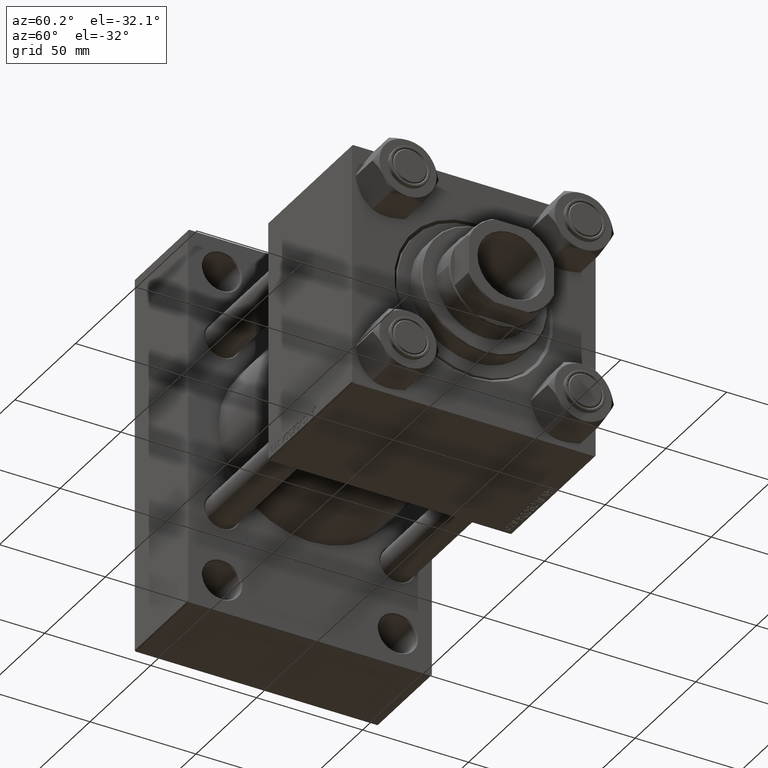
[diagram: clean part render]
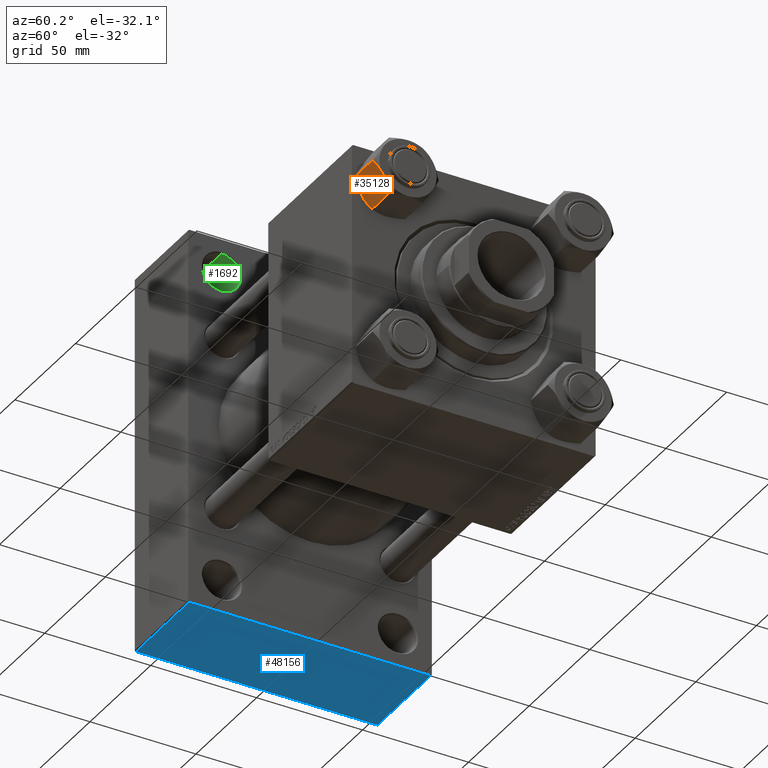
[diagram: same view with three faces highlighted in distinct colors, each labeled with its STEP entity id]
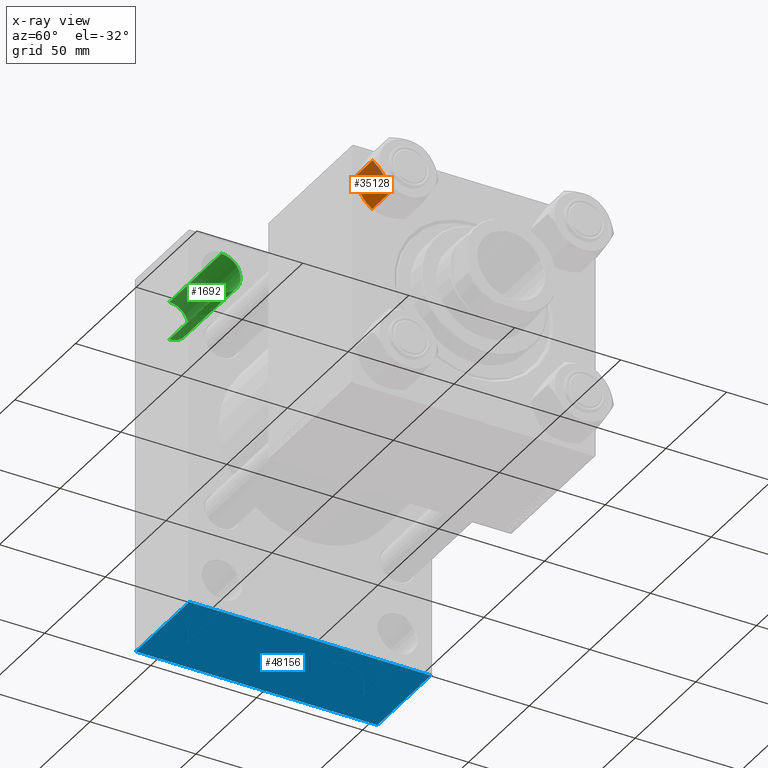
[diagram: x-ray of the same camera — body ghosted, the three highlighted faces saturated]
A machine part, auxiliary view with three faces highlighted in distinct colors.
The next image is the same camera in x-ray (body ghosted, the three faces saturated) — at least one of them is partly hidden behind the body in this view.
Their STEP definitions:

[orange] entity #35128 — the highlighted planar face has unit normal (-0, 0.866, 0.5).
#125 = ORIENTED_EDGE ( 'NONE', *, *, #48098, .F. ) ;
#405 = VERTEX_POINT ( 'NONE', #39028 ) ;
#482 = VERTEX_POINT ( 'NONE', #44088 ) ;
#844 = CARTESIAN_POINT ( 'NONE',  ( -7.809999999999999609, -13.52731680711293727, -18.00000000000000000 ) ) ;
#1028 = CARTESIAN_POINT ( 'NONE',  ( -15.61999999999999567, 8.023367828467702033E-15, -16.00000000000000000 ) ) ;
#1308 = CARTESIAN_POINT ( 'NONE',  ( -11.71500000000000163, -6.763658403556456200, 0.000000000000000000 ) ) ;
#2142 = EDGE_CURVE ( 'NONE', #405, #41718, #31010, .T. ) ;
#2338 = CARTESIAN_POINT ( 'NONE',  ( -15.52647173767731914, -0.1619957022864979002, -2.000000000000000000 ) ) ;
#3484 = CARTESIAN_POINT ( 'NONE',  ( -11.71499999999999986, -6.763658403556454424, -18.00000000000000000 ) ) ;
#3688 = CARTESIAN_POINT ( 'NONE',  ( -7.809999999999999609, -13.52731680711293727, -1.999999999999998224 ) ) ;
#5164 = CARTESIAN_POINT ( 'NONE',  ( -11.71499999999999986, -6.763658403556454424, -18.00000000000000000 ) ) ;
#5418 = CARTESIAN_POINT ( 'NONE',  ( -14.92394044919338292, -1.205610507090625561, -16.56553707812498999 ) ) ;
#5909 = VERTEX_POINT ( 'NONE', #49819 ) ;
#6124 = EDGE_CURVE ( 'NONE', #41718, #9784, #44169, .T. ) ;
#7024 = LINE ( 'NONE', #49103, #7823 ) ;
#7062 = CARTESIAN_POINT ( 'NONE',  ( -10.06459418565413166, -9.622245127110597096, -17.61639331488793303 ) ) ;
#7505 = DIRECTION ( 'NONE',  ( -0.4999999999999993894, 0.8660254037844389297, 0.000000000000000000 ) ) ;
#7823 = VECTOR ( 'NONE', #29997, 999.9999999999998863 ) ;
#8622 = VECTOR ( 'NONE', #21162, 999.9999999999998863 ) ;
#9210 = CARTESIAN_POINT ( 'NONE',  ( -9.124083218049248600, -11.25125790807802595, -0.9473872146228143887 ) ) ;
#9784 = VERTEX_POINT ( 'NONE', #1028 ) ;
#10528 = VERTEX_POINT ( 'NONE', #37729 ) ;
#10885 = VERTEX_POINT ( 'NONE', #26540 ) ;
#11365 = ORIENTED_EDGE ( 'NONE', *, *, #2142, .F. ) ;
#12102 = ORIENTED_EDGE ( 'NONE', *, *, #35688, .T. ) ;
#12271 = CARTESIAN_POINT ( 'NONE',  ( -7.903528262322684128, -13.36532110482641400, -2.000000000000000000 ) ) ;
#12314 = DIRECTION ( 'NONE',  ( 0.8660254037844390407, 0.4999999999999994449, 0.000000000000000000 ) ) ;
#12526 = CARTESIAN_POINT ( 'NONE',  ( -10.40215497533437805, -9.037572688741335014, -0.1971866459924560555 ) ) ;
#13867 = VERTEX_POINT ( 'NONE', #35348 ) ;
#14015 = LINE ( 'NONE', #48952, #8622 ) ;
#14706 = CARTESIAN_POINT ( 'NONE',  ( -11.38181071908714515, -7.340759166634855504, -17.99999999999998934 ) ) ;
#14844 = VECTOR ( 'NONE', #43658, 999.9999999999998863 ) ;
#14925 = ORIENTED_EDGE ( 'NONE', *, *, #17043, .F. ) ;
#15201 = CARTESIAN_POINT ( 'NONE',  ( -10.38662926516872709, -9.064464007571841009, -17.75691532989870325 ) ) ;
#16334 = VECTOR ( 'NONE', #30026, 1000.000000000000000 ) ;
#17043 = EDGE_CURVE ( 'NONE', #9784, #10528, #30516, .T. ) ;
#17126 = CARTESIAN_POINT ( 'NONE',  ( -11.71500000000000163, -6.763658403556456200, 0.000000000000000000 ) ) ;
#17150 = CARTESIAN_POINT ( 'NONE',  ( -15.52647173767731914, -0.1619957022864979002, -16.00000000000000000 ) ) ;
#17654 = VECTOR ( 'NONE', #18049, 1000.000000000000000 ) ;
#17799 = ORIENTED_EDGE ( 'NONE', *, *, #42438, .F. ) ;
#18049 = DIRECTION ( 'NONE',  ( -0.000000000000000000, -0.000000000000000000, 1.000000000000000000 ) ) ;
#18785 = CARTESIAN_POINT ( 'NONE',  ( -15.61999999999999567, 8.023367828467702033E-15, -18.00000000000000000 ) ) ;
#19290 = CARTESIAN_POINT ( 'NONE',  ( -8.502393313253762130, -12.32805640973646710, -16.58801072835992585 ) ) ;
#19481 = PLANE ( 'NONE',  #37184 ) ;
#20693 = CARTESIAN_POINT ( 'NONE',  ( -14.92760668674624469, -1.199260397376444409, -1.411989271640068155 ) ) ;
#20720 = CARTESIAN_POINT ( 'NONE',  ( -12.37702203890362362, -5.617002596445043849, -17.99999999999999645 ) ) ;
#20976 = CARTESIAN_POINT ( 'NONE',  ( -15.22736220980735489, -0.6800686015852174249, -16.29368822085854873 ) ) ;
#21162 = DIRECTION ( 'NONE',  ( -0.4999999999999994449, 0.8660254037844390407, 0.000000000000000000 ) ) ;
#22203 = EDGE_CURVE ( 'NONE', #10528, #39347, #23080, .T. ) ;
#22403 = B_SPLINE_CURVE_WITH_KNOTS ( 'NONE', 3,
 ( #1308, #36243, #12526, #32413, #9210, #35488, #47965, #12271 ),
 .UNSPECIFIED., .F., .F.,
 ( 4, 2, 2, 4 ),
 ( 0.007890825462474427426, 0.01181022244528554151, 0.01376992093669109421, 0.01572961942809664865 ),
 .UNSPECIFIED. ) ;
#23067 = FACE_OUTER_BOUND ( 'NONE', #39830, .T. ) ;
#23080 = LINE ( 'NONE', #3688, #40850 ) ;
#24819 = CARTESIAN_POINT ( 'NONE',  ( -15.52647173767731914, -0.1619957022864979002, -16.00000000000000000 ) ) ;
#26266 = ORIENTED_EDGE ( 'NONE', *, *, #34342, .F. ) ;
#26540 = CARTESIAN_POINT ( 'NONE',  ( -7.903528262322684128, -13.36532110482641400, -2.000000000000000000 ) ) ;
#26710 = CARTESIAN_POINT ( 'NONE',  ( -11.04378428799595291, -7.926238119585994113, -17.94910618364698252 ) ) ;
#28039 = VERTEX_POINT ( 'NONE', #46085 ) ;
#28120 = CARTESIAN_POINT ( 'NONE',  ( -7.809999999999999609, -13.52731680711293727, -16.00000000000000000 ) ) ;
#28677 = B_SPLINE_CURVE_WITH_KNOTS ( 'NONE', 3,
 ( #2338, #20693, #40336, #32174, #47723, #36259, #36511, #17126 ),
 .UNSPECIFIED., .F., .F.,
 ( 4, 2, 2, 4 ),
 ( 4.472842641998575579E-07, 0.003945636373369311792, 0.005918230917921869609, 0.007890825462474427426 ),
 .UNSPECIFIED. ) ;
#29997 = DIRECTION ( 'NONE',  ( 0.4999999999999994449, -0.8660254037844390407, 0.000000000000000000 ) ) ;
#30026 = DIRECTION ( 'NONE',  ( -0.000000000000000000, -0.000000000000000000, 1.000000000000000000 ) ) ;
#30050 = ORIENTED_EDGE ( 'NONE', *, *, #6124, .F. ) ;
#30451 = EDGE_CURVE ( 'NONE', #482, #405, #47802, .T. ) ;
#30516 = LINE ( 'NONE', #18785, #16334 ) ;
#30777 = CARTESIAN_POINT ( 'NONE',  ( -9.114548888011793082, -11.26777185211902399, -17.08577173959729834 ) ) ;
#31010 = B_SPLINE_CURVE_WITH_KNOTS ( 'NONE', 3,
 ( #5164, #20720, #39613, #36284, #48006, #5418, #20976, #17150 ),
 .UNSPECIFIED., .F., .F.,
 ( 4, 2, 2, 4 ),
 ( 0.007890825462474411814, 0.01181022244528552416, 0.01376992093669107860, 0.01572961942809663477 ),
 .UNSPECIFIED. ) ;
#32174 = CARTESIAN_POINT ( 'NONE',  ( -13.36540581434586628, -3.905071680002313084, -0.3836066851120598087 ) ) ;
#32413 = CARTESIAN_POINT ( 'NONE',  ( -9.439480280627266851, -10.70497417113491245, -0.7317196846281139866 ) ) ;
#34342 = EDGE_CURVE ( 'NONE', #13867, #482, #14015, .T. ) ;
#35128 = ADVANCED_FACE ( 'NONE', ( #23067 ), #19481, .F. ) ;
#35348 = CARTESIAN_POINT ( 'NONE',  ( -7.809999999999999609, -13.52731680711293727, -16.00000000000000000 ) ) ;
#35488 = CARTESIAN_POINT ( 'NONE',  ( -8.506059550806629233, -12.32170630002229217, -1.434462921875003572 ) ) ;
#35688 = EDGE_CURVE ( 'NONE', #13867, #28039, #37446, .T. ) ;
#35808 = ORIENTED_EDGE ( 'NONE', *, *, #22203, .F. ) ;
#36243 = CARTESIAN_POINT ( 'NONE',  ( -11.05297796109638320, -7.910314210667868551, 1.084202172485506160E-16 ) ) ;
#36259 = CARTESIAN_POINT ( 'NONE',  ( -12.38621571200405569, -5.601078687526920064, -0.05089381635301479939 ) ) ;
#36284 = CARTESIAN_POINT ( 'NONE',  ( -13.99051971937273464, -2.822342635978000391, -17.26828031537188224 ) ) ;
#36511 = CARTESIAN_POINT ( 'NONE',  ( -12.04818928091285635, -6.186557640478053344, -6.945670167485262780E-17 ) ) ;
#36932 = CARTESIAN_POINT ( 'NONE',  ( -7.809999999999999609, -13.52731680711293727, -18.00000000000000000 ) ) ;
#37184 = AXIS2_PLACEMENT_3D ( 'NONE', #844, #12314, #7505 ) ;
#37446 = LINE ( 'NONE', #36932, #17654 ) ;
#37729 = CARTESIAN_POINT ( 'NONE',  ( -15.61999999999999567, 8.023367828467702033E-15, -1.999999999999998224 ) ) ;
#38438 = CARTESIAN_POINT ( 'NONE',  ( -7.903528262322684128, -13.36532110482641400, -16.00000000000000000 ) ) ;
#38883 = DIRECTION ( 'NONE',  ( 0.4999999999999994449, -0.8660254037844390407, 0.000000000000000000 ) ) ;
#39028 = CARTESIAN_POINT ( 'NONE',  ( -11.71499999999999986, -6.763658403556454424, -18.00000000000000000 ) ) ;
#39347 = VERTEX_POINT ( 'NONE', #41278 ) ;
#39613 = CARTESIAN_POINT ( 'NONE',  ( -13.02784502466562699, -4.489744118371577386, -17.80281335400754017 ) ) ;
#39830 = EDGE_LOOP ( 'NONE', ( #26266, #12102, #17799, #125, #40637, #35808, #14925, #30050, #11365, #48880 ) ) ;
#40336 = CARTESIAN_POINT ( 'NONE',  ( -14.31545111198821019, -2.259544954993887078, -0.9142282604026940040 ) ) ;
#40637 = ORIENTED_EDGE ( 'NONE', *, *, #44858, .F. ) ;
#40850 = VECTOR ( 'NONE', #38883, 999.9999999999998863 ) ;
#41278 = CARTESIAN_POINT ( 'NONE',  ( -15.52647173767731914, -0.1619957022864979002, -2.000000000000000000 ) ) ;
#41718 = VERTEX_POINT ( 'NONE', #24819 ) ;
#42438 = EDGE_CURVE ( 'NONE', #10885, #28039, #7024, .T. ) ;
#43658 = DIRECTION ( 'NONE',  ( -0.4999999999999994449, 0.8660254037844390407, 0.000000000000000000 ) ) ;
#44088 = CARTESIAN_POINT ( 'NONE',  ( -7.903528262322684128, -13.36532110482641400, -16.00000000000000000 ) ) ;
#44169 = LINE ( 'NONE', #28120, #14844 ) ;
#44858 = EDGE_CURVE ( 'NONE', #39347, #5909, #28677, .T. ) ;
#46085 = CARTESIAN_POINT ( 'NONE',  ( -7.809999999999999609, -13.52731680711293727, -1.999999999999998224 ) ) ;
#47723 = CARTESIAN_POINT ( 'NONE',  ( -13.04337073483127973, -4.462852799541074056, -0.2430846701012976674 ) ) ;
#47802 = B_SPLINE_CURVE_WITH_KNOTS ( 'NONE', 3,
 ( #38438, #19290, #30777, #7062, #15201, #26710, #14706, #3484 ),
 .UNSPECIFIED., .F., .F.,
 ( 4, 2, 2, 4 ),
 ( 4.472842641823326580E-07, 0.003945636373369299649, 0.005918230917921855731, 0.007890825462474411814 ),
 .UNSPECIFIED. ) ;
#47965 = CARTESIAN_POINT ( 'NONE',  ( -8.202637790192653711, -12.84724820552769664, -1.706311779141443496 ) ) ;
#48006 = CARTESIAN_POINT ( 'NONE',  ( -14.30591678195075467, -2.276058899034888672, -17.05261278537718539 ) ) ;
#48098 = EDGE_CURVE ( 'NONE', #5909, #10885, #22403, .T. ) ;
#48880 = ORIENTED_EDGE ( 'NONE', *, *, #30451, .F. ) ;
#48952 = CARTESIAN_POINT ( 'NONE',  ( -7.809999999999999609, -13.52731680711293727, -16.00000000000000000 ) ) ;
#49103 = CARTESIAN_POINT ( 'NONE',  ( -7.809999999999999609, -13.52731680711293727, -1.999999999999998224 ) ) ;
#49819 = CARTESIAN_POINT ( 'NONE',  ( -11.71500000000000163, -6.763658403556456200, 0.000000000000000000 ) ) ;

[blue] entity #48156 — the highlighted planar face has unit normal (0, 0, -1).
#645 = LINE ( 'NONE', #16186, #38261 ) ;
#1345 = VECTOR ( 'NONE', #47023, 1000.000000000000000 ) ;
#1373 = CARTESIAN_POINT ( 'NONE',  ( 44.00000000000000000, 57.00000000000000000, -90.00000000000000000 ) ) ;
#2411 = VERTEX_POINT ( 'NONE', #44114 ) ;
#2823 = PLANE ( 'NONE',  #28280 ) ;
#3690 = ORIENTED_EDGE ( 'NONE', *, *, #34889, .T. ) ;
#3736 = CARTESIAN_POINT ( 'NONE',  ( 44.00000000000000000, 57.50000000000000000, -90.00000000000000000 ) ) ;
#3892 = CARTESIAN_POINT ( 'NONE',  ( 44.00000000000000000, -56.99999999999998579, -90.00000000000002842 ) ) ;
#5077 = VERTEX_POINT ( 'NONE', #47031 ) ;
#5405 = VERTEX_POINT ( 'NONE', #3892 ) ;
#7036 = VECTOR ( 'NONE', #38687, 1000.000000000000000 ) ;
#9016 = DIRECTION ( 'NONE',  ( 1.000000000000000000, 0.000000000000000000, 0.000000000000000000 ) ) ;
#13067 = EDGE_CURVE ( 'NONE', #5077, #22771, #645, .T. ) ;
#16158 = CARTESIAN_POINT ( 'NONE',  ( 0.000000000000000000, -56.99999999999998579, -90.00000000000002842 ) ) ;
#16186 = CARTESIAN_POINT ( 'NONE',  ( 0.000000000000000000, 57.50000000000000000, -90.00000000000000000 ) ) ;
#17866 = DIRECTION ( 'NONE',  ( 0.000000000000000000, 2.413528314402514583E-16, -1.000000000000000000 ) ) ;
#19995 = LINE ( 'NONE', #16158, #1345 ) ;
#20746 = LINE ( 'NONE', #1373, #40436 ) ;
#22771 = VERTEX_POINT ( 'NONE', #34441 ) ;
#25027 = CARTESIAN_POINT ( 'NONE',  ( 44.00000000000000000, 57.50000000000000000, -90.00000000000000000 ) ) ;
#27952 = LINE ( 'NONE', #3736, #7036 ) ;
#28280 = AXIS2_PLACEMENT_3D ( 'NONE', #25027, #17866, #29112 ) ;
#29112 = DIRECTION ( 'NONE',  ( 0.000000000000000000, 1.000000000000000000, 2.413528314402514583E-16 ) ) ;
#32007 = DIRECTION ( 'NONE',  ( 0.000000000000000000, -1.000000000000000000, -2.413528314402514583E-16 ) ) ;
#33686 = FACE_OUTER_BOUND ( 'NONE', #40383, .T. ) ;
#34441 = CARTESIAN_POINT ( 'NONE',  ( 0.000000000000000000, -56.99999999999998579, -90.00000000000002842 ) ) ;
#34889 = EDGE_CURVE ( 'NONE', #2411, #5405, #27952, .T. ) ;
#38261 = VECTOR ( 'NONE', #32007, 1000.000000000000000 ) ;
#38687 = DIRECTION ( 'NONE',  ( 0.000000000000000000, -1.000000000000000000, -2.413528314402514583E-16 ) ) ;
#40383 = EDGE_LOOP ( 'NONE', ( #46281, #42463, #3690, #47313 ) ) ;
#40436 = VECTOR ( 'NONE', #9016, 1000.000000000000000 ) ;
#42463 = ORIENTED_EDGE ( 'NONE', *, *, #46155, .T. ) ;
#43469 = EDGE_CURVE ( 'NONE', #5405, #22771, #19995, .T. ) ;
#44114 = CARTESIAN_POINT ( 'NONE',  ( 44.00000000000000000, 57.00000000000000000, -90.00000000000000000 ) ) ;
#46155 = EDGE_CURVE ( 'NONE', #5077, #2411, #20746, .T. ) ;
#46281 = ORIENTED_EDGE ( 'NONE', *, *, #13067, .F. ) ;
#47023 = DIRECTION ( 'NONE',  ( -1.000000000000000000, 0.000000000000000000, 0.000000000000000000 ) ) ;
#47031 = CARTESIAN_POINT ( 'NONE',  ( 0.000000000000000000, 57.00000000000000000, -90.00000000000000000 ) ) ;
#47313 = ORIENTED_EDGE ( 'NONE', *, *, #43469, .T. ) ;
#48156 = ADVANCED_FACE ( 'NONE', ( #33686 ), #2823, .T. ) ;

[green] entity #1692 — the highlighted cylindrical surface (edge-blend (fillet) strip) has radius 9 mm, axis along (-1, -0, -0).
#714 = CARTESIAN_POINT ( 'NONE',  ( 43.49999999999996447, -41.50000000000000000, 74.50000000000000000 ) ) ;
#1267 = DIRECTION ( 'NONE',  ( -1.000000000000000000, -0.000000000000000000, -0.000000000000000000 ) ) ;
#1692 = ADVANCED_FACE ( 'NONE', ( #49648 ), #10398, .F. ) ;
#1789 = DIRECTION ( 'NONE',  ( -1.000000000000000000, 0.000000000000000000, 0.000000000000000000 ) ) ;
#2408 = EDGE_CURVE ( 'NONE', #5018, #15916, #31805, .T. ) ;
#3867 = CIRCLE ( 'NONE', #38903, 8.999999999999994671 ) ;
#4595 = CARTESIAN_POINT ( 'NONE',  ( 0.4999999999999865663, -41.50000000000000000, 74.50000000000000000 ) ) ;
#5018 = VERTEX_POINT ( 'NONE', #49370 ) ;
#7510 = CARTESIAN_POINT ( 'NONE',  ( 43.49999999999996447, -41.50000000000000000, 83.49999999999998579 ) ) ;
#7541 = EDGE_CURVE ( 'NONE', #36689, #5018, #20896, .T. ) ;
#8741 = LINE ( 'NONE', #39352, #30592 ) ;
#8796 = EDGE_CURVE ( 'NONE', #49261, #36689, #3867, .T. ) ;
#10398 = CYLINDRICAL_SURFACE ( 'NONE', #44818, 8.999999999999994671 ) ;
#14953 = DIRECTION ( 'NONE',  ( -1.000000000000000000, -0.000000000000000000, -0.000000000000000000 ) ) ;
#15744 = EDGE_LOOP ( 'NONE', ( #31236, #28680, #27607, #48402 ) ) ;
#15916 = VERTEX_POINT ( 'NONE', #48108 ) ;
#17071 = CARTESIAN_POINT ( 'NONE',  ( 69.45584412271568908, -41.50000000000000000, 83.49999999999998579 ) ) ;
#19838 = DIRECTION ( 'NONE',  ( 0.000000000000000000, 0.000000000000000000, 1.000000000000000000 ) ) ;
#20896 = LINE ( 'NONE', #17071, #27138 ) ;
#22630 = DIRECTION ( 'NONE',  ( 0.000000000000000000, 0.000000000000000000, 1.000000000000000000 ) ) ;
#26708 = CARTESIAN_POINT ( 'NONE',  ( 69.45584412271568908, -41.50000000000000000, 74.50000000000000000 ) ) ;
#27138 = VECTOR ( 'NONE', #1267, 1000.000000000000000 ) ;
#27607 = ORIENTED_EDGE ( 'NONE', *, *, #7541, .T. ) ;
#28680 = ORIENTED_EDGE ( 'NONE', *, *, #8796, .T. ) ;
#30592 = VECTOR ( 'NONE', #46993, 1000.000000000000000 ) ;
#31236 = ORIENTED_EDGE ( 'NONE', *, *, #40931, .F. ) ;
#31805 = CIRCLE ( 'NONE', #41617, 8.999999999999994671 ) ;
#36689 = VERTEX_POINT ( 'NONE', #7510 ) ;
#38903 = AXIS2_PLACEMENT_3D ( 'NONE', #714, #50461, #19838 ) ;
#39352 = CARTESIAN_POINT ( 'NONE',  ( 69.45584412271568908, -41.50000000000000000, 65.50000000000000000 ) ) ;
#39549 = DIRECTION ( 'NONE',  ( 0.000000000000000000, 0.000000000000000000, 1.000000000000000000 ) ) ;
#40931 = EDGE_CURVE ( 'NONE', #49261, #15916, #8741, .T. ) ;
#41617 = AXIS2_PLACEMENT_3D ( 'NONE', #4595, #1789, #39549 ) ;
#44818 = AXIS2_PLACEMENT_3D ( 'NONE', #26708, #14953, #22630 ) ;
#46993 = DIRECTION ( 'NONE',  ( -1.000000000000000000, -0.000000000000000000, -0.000000000000000000 ) ) ;
#48108 = CARTESIAN_POINT ( 'NONE',  ( 0.4999999999999865663, -41.50000000000000000, 65.50000000000000000 ) ) ;
#48402 = ORIENTED_EDGE ( 'NONE', *, *, #2408, .T. ) ;
#49261 = VERTEX_POINT ( 'NONE', #49554 ) ;
#49370 = CARTESIAN_POINT ( 'NONE',  ( 0.4999999999999865663, -41.50000000000000000, 83.49999999999998579 ) ) ;
#49554 = CARTESIAN_POINT ( 'NONE',  ( 43.49999999999996447, -41.50000000000000000, 65.50000000000000000 ) ) ;
#49648 = FACE_OUTER_BOUND ( 'NONE', #15744, .T. ) ;
#50461 = DIRECTION ( 'NONE',  ( 1.000000000000000000, 0.000000000000000000, 0.000000000000000000 ) ) ;